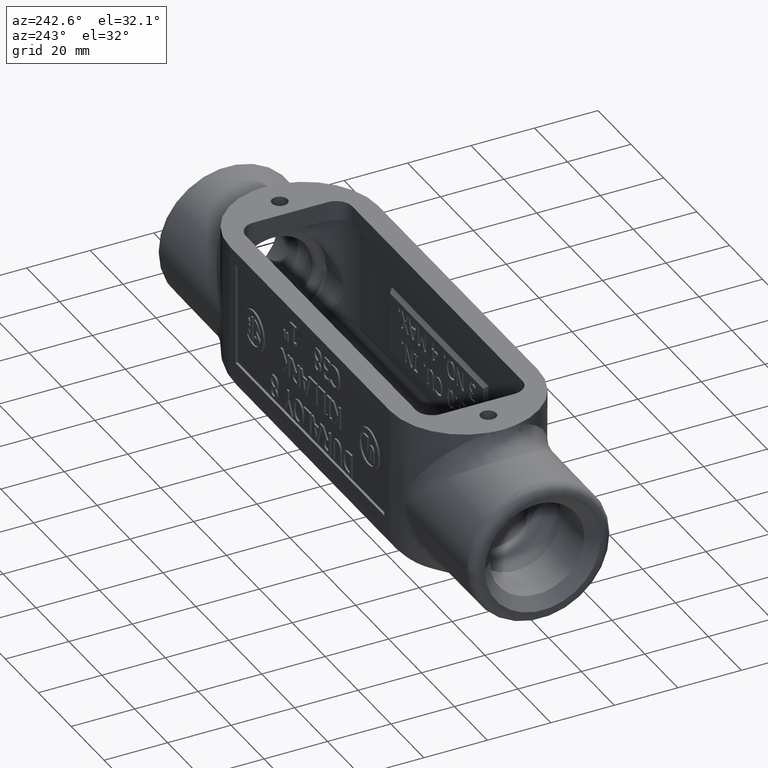
[diagram: clean part render]
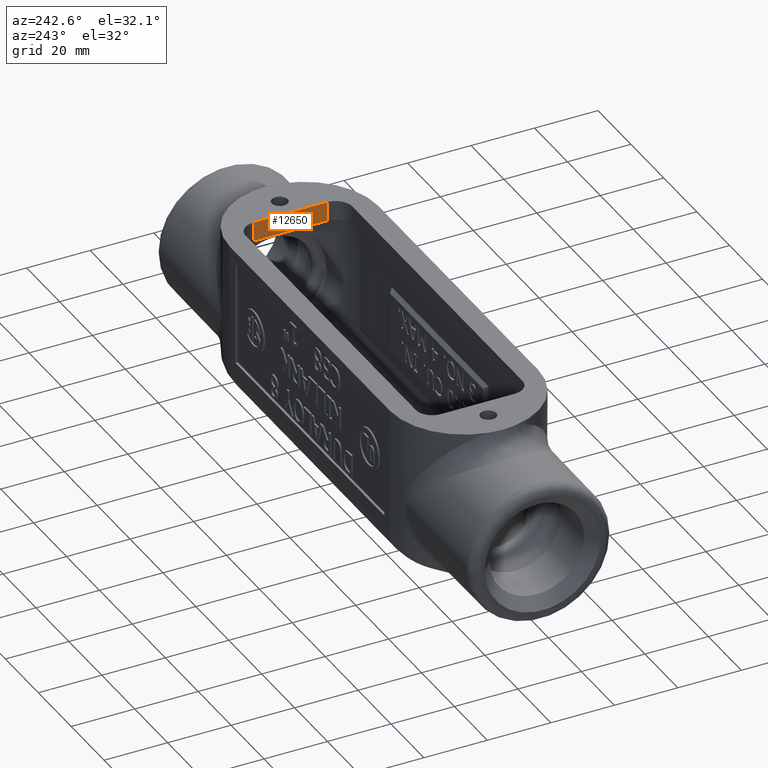
[diagram: same view with one face highlighted and labeled with its STEP entity id]
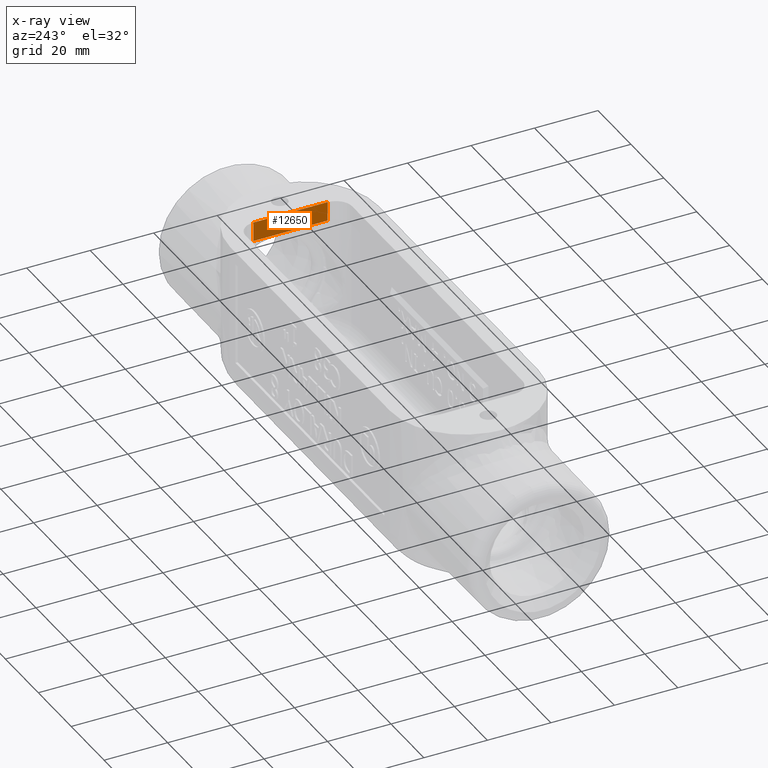
[diagram: x-ray of the same camera — body ghosted, the highlighted face saturated]
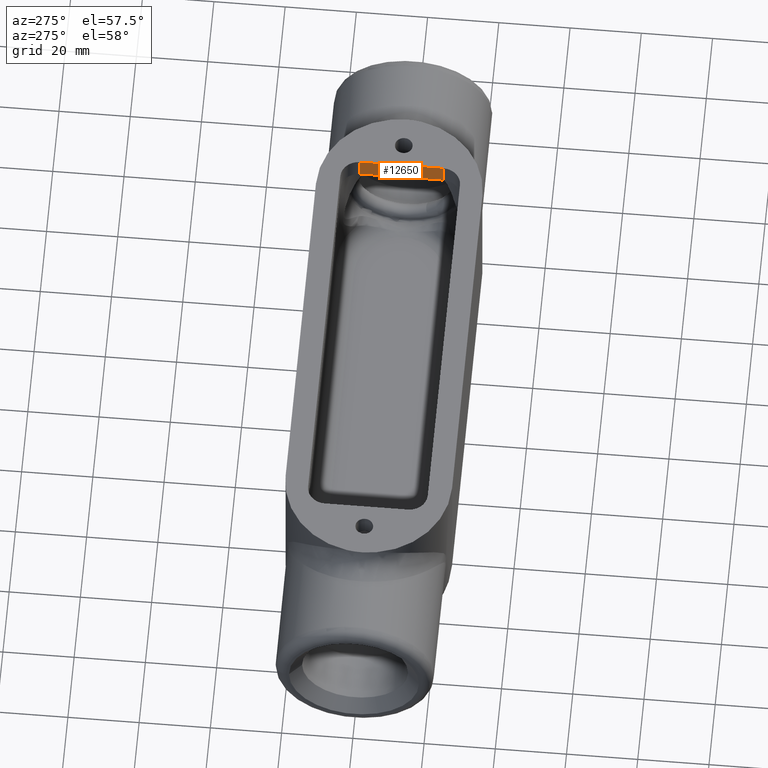
[diagram: same view with one face highlighted and labeled with its STEP entity id]
A machine part, auxiliary view. The second image highlights one B-rep face of the part: STEP entity #12650.
The next image is the same camera in x-ray: the body ghosted, the highlighted face saturated — about 0% of this face is hidden behind the body in this view.
A second angle (auxiliary view) of the same face is appended — the face is thin or edge-on in the first view.
In plain terms, the highlighted planar face has unit normal (1, 0, 0).
Its self-contained STEP definition (entity closure, byte-faithful):
#27=PLANE('',#13417);
#457=LINE('',#18305,#1684);
#458=LINE('',#18307,#1685);
#459=LINE('',#18309,#1686);
#460=LINE('',#18310,#1687);
#1684=VECTOR('',#14147,0.393700787401575);
#1685=VECTOR('',#14148,0.393700787401575);
#1686=VECTOR('',#14149,0.393700787401575);
#1687=VECTOR('',#14150,0.393700787401575);
#4416=FACE_OUTER_BOUND('',#5123,.T.);
#5123=EDGE_LOOP('',(#9200,#9201,#9202,#9203));
#6031=VERTEX_POINT('',#18303);
#6032=VERTEX_POINT('',#18304);
#6033=VERTEX_POINT('',#18306);
#6034=VERTEX_POINT('',#18308);
#7282=EDGE_CURVE('',#6031,#6032,#457,.T.);
#7283=EDGE_CURVE('',#6033,#6032,#458,.T.);
#7284=EDGE_CURVE('',#6034,#6033,#459,.T.);
#7285=EDGE_CURVE('',#6034,#6031,#460,.T.);
#9200=ORIENTED_EDGE('',*,*,#7282,.T.);
#9201=ORIENTED_EDGE('',*,*,#7283,.F.);
#9202=ORIENTED_EDGE('',*,*,#7284,.F.);
#9203=ORIENTED_EDGE('',*,*,#7285,.T.);
#12650=ADVANCED_FACE('',(#4416),#27,.F.);
#13417=AXIS2_PLACEMENT_3D('',#18302,#14145,#14146);
#14145=DIRECTION('center_axis',(1.,0.,0.));
#14146=DIRECTION('ref_axis',(0.,-1.,0.));
#14147=DIRECTION('',(0.,-1.,0.));
#14148=DIRECTION('',(0.,0.,-1.));
#14149=DIRECTION('',(0.,-1.,0.));
#14150=DIRECTION('',(0.,0.,-1.));
#18302=CARTESIAN_POINT('Origin',(2.237,0.461,0.985));
#18303=CARTESIAN_POINT('',(2.237,0.461,0.745));
#18304=CARTESIAN_POINT('',(2.237,-0.461,0.745));
#18305=CARTESIAN_POINT('',(2.237,-0.461,0.745));
#18306=CARTESIAN_POINT('',(2.237,-0.461,0.985));
#18307=CARTESIAN_POINT('',(2.237,-0.461,0.985));
#18308=CARTESIAN_POINT('',(2.237,0.461,0.985));
#18309=CARTESIAN_POINT('',(2.237,0.2305,0.985));
#18310=CARTESIAN_POINT('',(2.237,0.461,0.985));